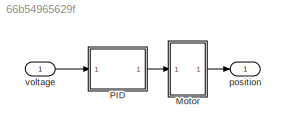
MODEL slx_66b54965629f
KIND model
CONFIG AbsTol = auto
CONFIG EnableMultiTasking = off
CONFIG FixedStep = auto
CONFIG MaxStep = auto
CONFIG MinStep = auto
CONFIG RelTol = 1e-3
CONFIG SampleTimeConstraint = Unconstrained
CONFIG SolverName = VariableStepAuto
CONFIG StartTime = 0.0
CONFIG StopTime = 10.0
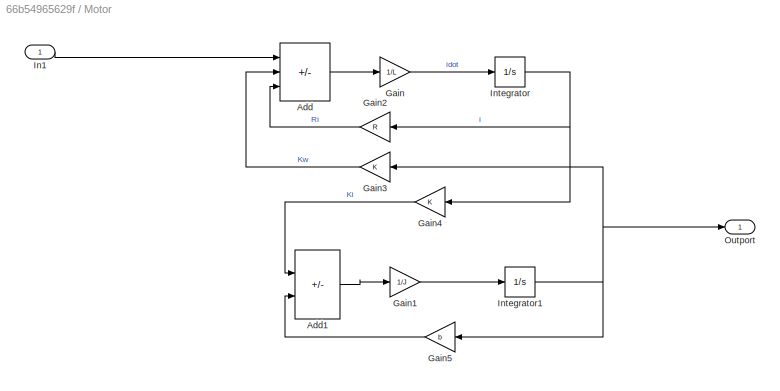
BLOCK [SubSystem] Motor
  Ports = [1, 1]
  RequestExecContextInheritance = off
BLOCK [Sum] Motor/Add
  IconShape = rectangular
  Inputs = +--
  Ports = [3, 1]
BLOCK [Sum] Motor/Add1
  IconShape = rectangular
  Inputs = +-
  Ports = [2, 1]
BLOCK [Gain] Motor/Gain
  Gain = 1/L
BLOCK [Gain] Motor/Gain1
  Gain = 1/J
BLOCK [Gain] Motor/Gain2
  Gain = R
  NameLocation = top
BLOCK [Gain] Motor/Gain3
  Gain = K
  NameLocation = top
BLOCK [Gain] Motor/Gain4
  Gain = K
  NameLocation = top
BLOCK [Gain] Motor/Gain5
  Gain = b
  NameLocation = top
BLOCK [Inport] Motor/In1
BLOCK [Integrator] Motor/Integrator
  Ports = [1, 1]
BLOCK [Integrator] Motor/Integrator1
  Ports = [1, 1]
BLOCK [Outport] Motor/Outport
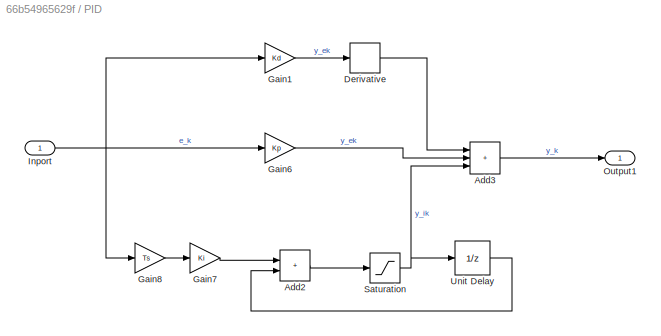
BLOCK [SubSystem] PID
  Ports = [1, 1]
  RequestExecContextInheritance = off
BLOCK [Sum] PID/Add2
  IconShape = rectangular
  Ports = [2, 1]
BLOCK [Sum] PID/Add3
  IconShape = rectangular
  Inputs = +++
  Ports = [3, 1]
BLOCK [Derivative] PID/Derivative
BLOCK [Gain] PID/Gain1
  Gain = Kd
BLOCK [Gain] PID/Gain6
  Gain = Kp
BLOCK [Gain] PID/Gain7
  Gain = Ki
BLOCK [Gain] PID/Gain8
  Gain = Ts
BLOCK [Inport] PID/Inport
BLOCK [Outport] PID/Output1
BLOCK [Saturate] PID/Saturation
  LowerLimit = -1
  UpperLimit = 1
BLOCK [UnitDelay] PID/Unit Delay
  HasFrameUpgradeWarning = on
  SampleTime = -1
BLOCK [Outport] position
  OutDataTypeStr = double
  PortDimensions = 1
  SampleTime = 0
  SamplingMode = Sample based
  SignalType = real
BLOCK [Inport] voltage
  OutDataTypeStr = double
  PortDimensions = 1
  SampleTime = 0
  SamplingMode = Sample based
  SignalType = real
LINE Motor/Add1:1 -> Motor/Gain1:1
LINE Motor/Add:1 -> Motor/Gain:1
LINE Motor/Gain1:1 -> Motor/Integrator1:1
LINE Motor/Gain2:1 -> Motor/Add:3
LINE Motor/Gain3:1 -> Motor/Add:2
LINE Motor/Gain4:1 -> Motor/Add1:1
LINE Motor/Gain5:1 -> Motor/Add1:2
LINE Motor/Gain:1 -> Motor/Integrator:1
LINE Motor/In1:1 -> Motor/Add:1
NET Motor/Integrator1:1 -> Motor/Gain3:1, Motor/Gain5:1, Motor/Outport:1
NET Motor/Integrator:1 -> Motor/Gain2:1, Motor/Gain4:1
LINE Motor:1 -> position:1
LINE PID/Add2:1 -> PID/Saturation:1
LINE PID/Add3:1 -> PID/Output1:1
LINE PID/Derivative:1 -> PID/Add3:1
LINE PID/Gain1:1 -> PID/Derivative:1
LINE PID/Gain6:1 -> PID/Add3:2
LINE PID/Gain7:1 -> PID/Add2:1
LINE PID/Gain8:1 -> PID/Gain7:1
NET PID/Inport:1 -> PID/Gain1:1, PID/Gain6:1, PID/Gain8:1
NET PID/Saturation:1 -> PID/Add3:3, PID/Unit Delay:1
LINE PID/Unit Delay:1 -> PID/Add2:2
LINE PID:1 -> Motor:1
LINE voltage:1 -> PID:1
note: NET lines group one-source signal fan-out (src -> all destinations, sorted); 1:1 wires keep LINE
